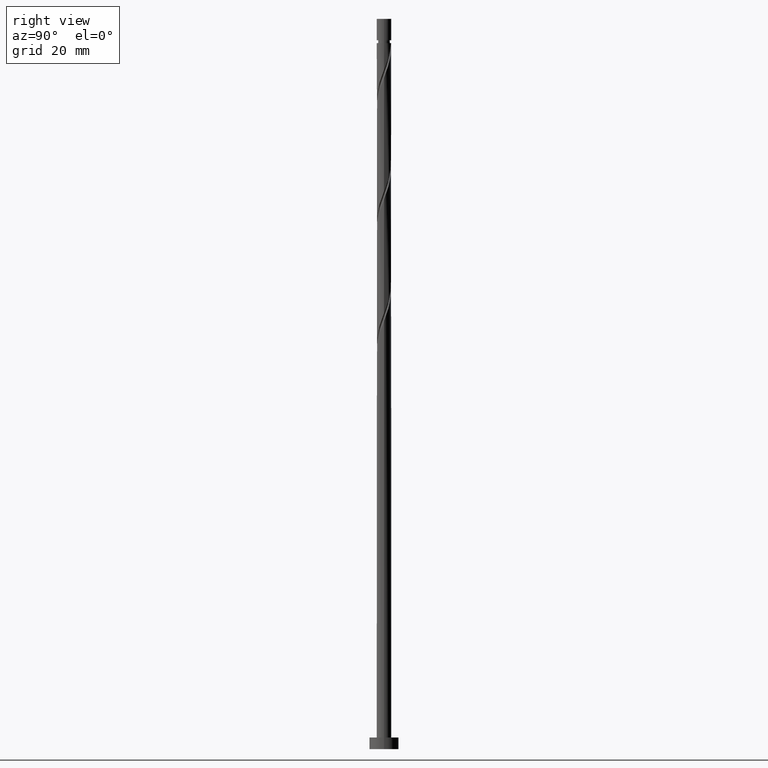
[diagram: clean part render]
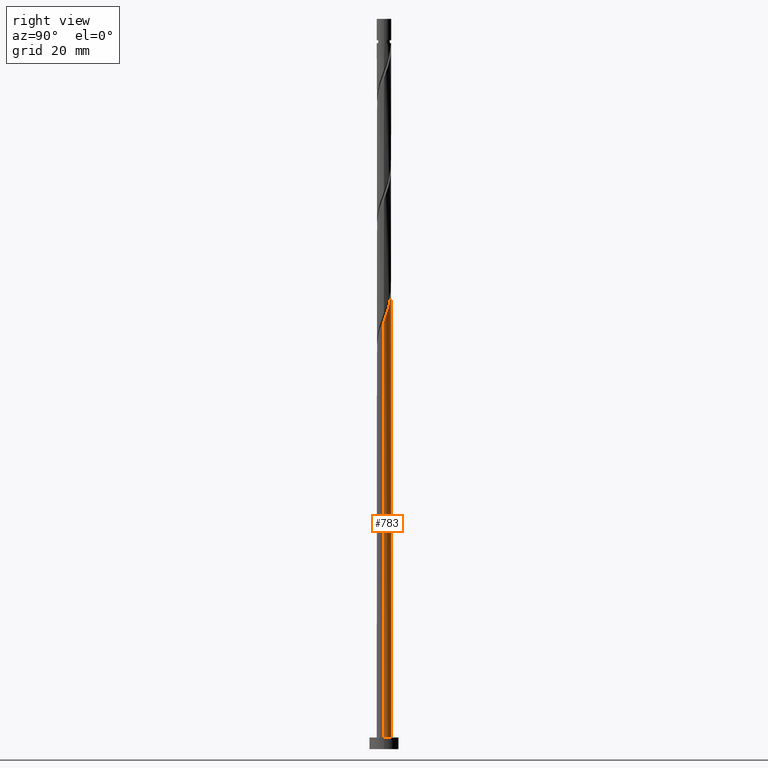
[diagram: same view with one face highlighted and labeled with its STEP entity id]
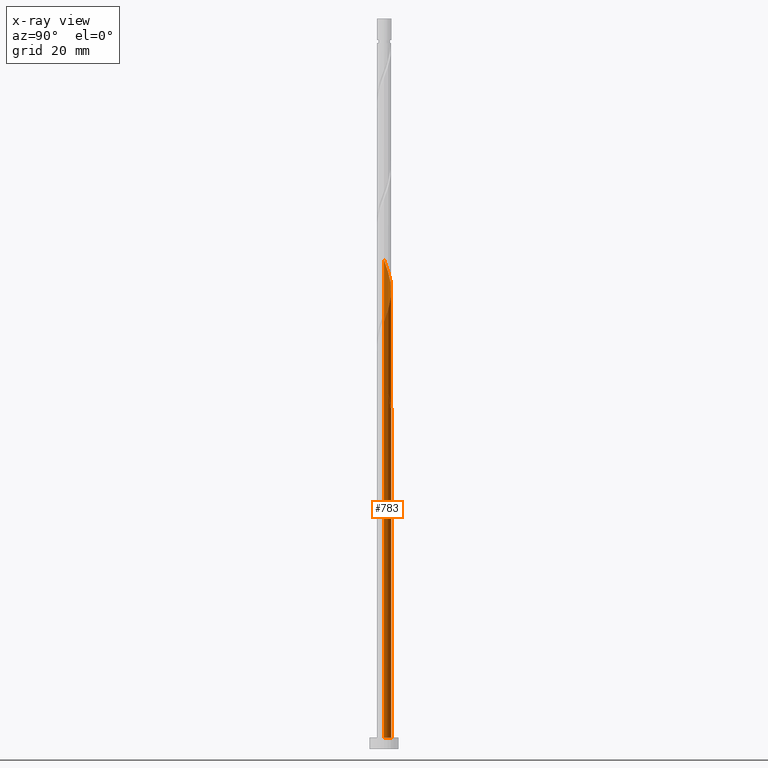
[diagram: x-ray of the same camera — body ghosted, the highlighted face saturated]
A machine part, right view. The second image highlights one B-rep face of the part: STEP entity #783.
The next image is the same camera in x-ray: the body ghosted, the highlighted face saturated — about 0% of this face is hidden behind the body in this view.
In plain terms, the highlighted cylindrical surface (edge-blend (fillet) strip) has radius 1.25 mm, axis along (-0, -0, -1).
Its self-contained STEP definition (entity closure, byte-faithful):
#10 = DIRECTION ( 'NONE',  ( -0.000000000000000000, -0.000000000000000000, -1.000000000000000000 ) ) ;
#18 =( BOUNDED_CURVE ( )  B_SPLINE_CURVE ( 2, ( #1286, #1505, #405, #780, #1259, #181, #656, #417, #534, #73, #1017 ),
 .UNSPECIFIED., .F., .T. ) 
 B_SPLINE_CURVE_WITH_KNOTS ( ( 3, 2, 2, 2, 2, 3 ),
 ( 0.000000000000000000, 0.01249999999999995559, 0.02500000000000002220, 0.03749999999999997780, 0.05000000000000004441, 0.05453220231385529082 ),
 .UNSPECIFIED. ) 
 CURVE ( )  GEOMETRIC_REPRESENTATION_ITEM ( )  RATIONAL_B_SPLINE_CURVE ( ( 0.9090909090909247148, 0.8978984914501405568, 0.9090909090909247148, 0.8978984914501405568, 0.9090909090909247148, 0.8978984914501405568, 0.9090909090909247148, 0.8978984914501405568, 0.9090909090909247148, 0.9050328050005889136, 0.9039174447099467269 ) ) 
 REPRESENTATION_ITEM ( '' )  );
#23 = DIRECTION ( 'NONE',  ( 0.000000000000000000, 0.000000000000000000, 1.000000000000000000 ) ) ;
#40 = CARTESIAN_POINT ( 'NONE',  ( 0.05472591987909831285, 1.264397632089019563, 58.85821959609354082 ) ) ;
#56 = CARTESIAN_POINT ( 'NONE',  ( -0.2487468592766551023, 1.225000000000001643, 79.17071959609350529 ) ) ;
#73 = CARTESIAN_POINT ( 'NONE',  ( -1.250000000000002442, 0.07121717180803986691, 62.69140606541601102 ) ) ;
#78 = CARTESIAN_POINT ( 'NONE',  ( 1.185602367910983057, 0.4427677986742126204, 74.48321959609356213 ) ) ;
#113 = DIRECTION ( 'NONE',  ( -0.000000000000000000, -0.000000000000000000, -1.000000000000000000 ) ) ;
#149 = VERTEX_POINT ( 'NONE', #580 ) ;
#161 = CARTESIAN_POINT ( 'NONE',  ( -0.6989200819604577397, 1.055086260630532458, 60.94155292942686941 ) ) ;
#181 = CARTESIAN_POINT ( 'NONE',  ( -1.055086260630534012, 0.6989200819604589610, 60.94155292942687652 ) ) ;
#186 = CARTESIAN_POINT ( 'NONE',  ( 1.250000000000001998, 1.214441325439654494E-15, 73.29758382128994754 ) ) ;
#197 = ORIENTED_EDGE ( 'NONE', *, *, #1414, .T. ) ;
#200 = CARTESIAN_POINT ( 'NONE',  ( -0.9212773705104884137, 0.8448360826724228279, 81.25405292942686231 ) ) ;
#201 = CARTESIAN_POINT ( 'NONE',  ( -1.250000000000000000, 0.000000000000000000, 125.0000000000000000 ) ) ;
#204 = VECTOR ( 'NONE', #10, 1000.000000000000000 ) ;
#215 = CARTESIAN_POINT ( 'NONE',  ( -0.9907520833843854735, 0.7874684803904422603, 61.98321959609354792 ) ) ;
#254 = EDGE_CURVE ( 'NONE', #149, #497, #1523, .T. ) ;
#265 = CARTESIAN_POINT ( 'NONE',  ( 0.000000000000000000, 0.000000000000000000, 2.000000000000000000 ) ) ;
#270 = FACE_OUTER_BOUND ( 'NONE', #915, .T. ) ;
#281 = VERTEX_POINT ( 'NONE', #550 ) ;
#287 = CYLINDRICAL_SURFACE ( 'NONE', #568, 1.250000000000000000 ) ;
#293 = CARTESIAN_POINT ( 'NONE',  ( -1.055086260630534012, 0.6989200819604589610, 81.77488626276023354 ) ) ;
#305 = CARTESIAN_POINT ( 'NONE',  ( -1.241911239275444778, 0.1419734966862944425, 83.33738626276021932 ) ) ;
#331 = CARTESIAN_POINT ( 'NONE',  ( -1.088177225647683377, 0.6151181395323275236, 62.50405292942688362 ) ) ;
#366 = CARTESIAN_POINT ( 'NONE',  ( -0.5187964976060721600, 1.137255553546199893, 60.42071959609356213 ) ) ;
#374 = VECTOR ( 'NONE', #113, 1000.000000000000000 ) ;
#405 = CARTESIAN_POINT ( 'NONE',  ( -0.6151181395323278567, 1.088177225647684931, 59.37905292942686231 ) ) ;
#409 = CARTESIAN_POINT ( 'NONE',  ( -0.7874684803904431485, 0.9907520833843873609, 80.73321959609353371 ) ) ;
#410 = VERTEX_POINT ( 'NONE', #799 ) ;
#417 = CARTESIAN_POINT ( 'NONE',  ( -1.219424846461869105, 0.3386729132516872465, 61.98321959609355503 ) ) ;
#419 = ORIENTED_EDGE ( 'NONE', *, *, #885, .F. ) ;
#435 = CARTESIAN_POINT ( 'NONE',  ( -1.250000000000000444, 0.1256297269074008183, 63.87621746215596374 ) ) ;
#443 = CARTESIAN_POINT ( 'NONE',  ( -0.8448360826724220507, 0.9212773705104875255, 61.46238626276023354 ) ) ;
#474 = CARTESIAN_POINT ( 'NONE',  ( 0.000000000000000000, 0.000000000000000000, 58.33738626276021932 ) ) ;
#497 = VERTEX_POINT ( 'NONE', #788 ) ;
#507 = EDGE_CURVE ( 'NONE', #1016, #1499, #18, .T. ) ;
#520 = VERTEX_POINT ( 'NONE', #908 ) ;
#532 = CARTESIAN_POINT ( 'NONE',  ( 0.8448360826724229389, 0.9212773705104880806, 76.04571959609354792 ) ) ;
#534 = CARTESIAN_POINT ( 'NONE',  ( -1.241911239275444778, 0.1419734966862944425, 62.50405292942687652 ) ) ;
#540 = CARTESIAN_POINT ( 'NONE',  ( -1.219424846461869105, 0.3386729132516872465, 82.81655292942689073 ) ) ;
#550 = CARTESIAN_POINT ( 'NONE',  ( 1.250000000000000000, 1.530808498934191571E-16, 2.000000000000000000 ) ) ;
#554 = CARTESIAN_POINT ( 'NONE',  ( 0.3386729132516873020, 1.219424846461869105, 77.60821959609357634 ) ) ;
#568 = AXIS2_PLACEMENT_3D ( 'NONE', #1355, #1117, #742 ) ;
#579 = CARTESIAN_POINT ( 'NONE',  ( 1.250000000000000000, 1.530808498934191571E-16, 125.0000000000000000 ) ) ;
#580 = CARTESIAN_POINT ( 'NONE',  ( -1.250000000000002220, -1.386862007446519028E-15, 83.71425048795661894 ) ) ;
#611 = LINE ( 'NONE', #1092, #204 ) ;
#614 = AXIS2_PLACEMENT_3D ( 'NONE', #265, #23, #734 ) ;
#656 = CARTESIAN_POINT ( 'NONE',  ( -1.137255553546201226, 0.5187964976060727151, 61.46238626276019801 ) ) ;
#660 = CARTESIAN_POINT ( 'NONE',  ( -0.05472591987909788264, 1.264397632089020895, 78.64988626276021932 ) ) ;
#675 = CARTESIAN_POINT ( 'NONE',  ( -1.250000000000002220, -1.386862007446519028E-15, 83.71425048795660473 ) ) ;
#734 = DIRECTION ( 'NONE',  ( 1.000000000000000000, 0.000000000000000000, 0.000000000000000000 ) ) ;
#742 = DIRECTION ( 'NONE',  ( -1.000000000000000000, 0.000000000000000000, 0.000000000000000000 ) ) ;
#748 = EDGE_CURVE ( 'NONE', #497, #1257, #984, .T. ) ;
#757 = ORIENTED_EDGE ( 'NONE', *, *, #748, .F. ) ;
#768 = CARTESIAN_POINT ( 'NONE',  ( -0.2487468592766551301, 1.225000000000001643, 58.33738626276020511 ) ) ;
#780 = CARTESIAN_POINT ( 'NONE',  ( -0.7874684803904431485, 0.9907520833843873609, 59.89988626276019801 ) ) ;
#783 = ADVANCED_FACE ( 'NONE', ( #270 ), #287, .T. ) ;
#788 = CARTESIAN_POINT ( 'NONE',  ( -1.250000000000000222, -5.277572179688405354E-15, 64.21052203756380550 ) ) ;
#798 = CARTESIAN_POINT ( 'NONE',  ( 0.5187964976060730482, 1.137255553546201226, 77.08738626276020511 ) ) ;
#799 = CARTESIAN_POINT ( 'NONE',  ( 1.250000000000001998, 1.214441325439654494E-15, 73.29758382128994754 ) ) ;
#812 = CARTESIAN_POINT ( 'NONE',  ( -1.250000000000000222, -5.277572179688405354E-15, 64.21052203756380550 ) ) ;
#836 = LINE ( 'NONE', #579, #374 ) ;
#849 = CARTESIAN_POINT ( 'NONE',  ( 0.2487468592766556297, 1.225000000000000311, 58.33738626276021222 ) ) ;
#853 = DIRECTION ( 'NONE',  ( 0.000000000000000000, -0.000000000000000000, -1.000000000000000000 ) ) ;
#874 = AXIS2_PLACEMENT_3D ( 'NONE', #474, #853, #1339 ) ;
#885 = EDGE_CURVE ( 'NONE', #1499, #520, #611, .T. ) ;
#887 = CARTESIAN_POINT ( 'NONE',  ( 1.088177225647684931, 0.6151181395323277457, 75.00405292942689073 ) ) ;
#897 = CIRCLE ( 'NONE', #614, 1.250000000000000000 ) ;
#901 = CARTESIAN_POINT ( 'NONE',  ( 1.225000000000001643, 0.2487468592766552411, 73.96238626276021932 ) ) ;
#908 = CARTESIAN_POINT ( 'NONE',  ( -1.250000000000000000, 0.000000000000000000, 2.000000000000000000 ) ) ;
#915 = EDGE_LOOP ( 'NONE', ( #1347, #1032, #1031, #419, #1328, #197, #757, #1359 ) ) ;
#921 = CIRCLE ( 'NONE', #874, 1.250000000000000000 ) ;
#928 = EDGE_CURVE ( 'NONE', #410, #149, #1273, .T. ) ;
#929 = CARTESIAN_POINT ( 'NONE',  ( -1.225000000000000311, 0.2487468592766554076, 63.54571959609354792 ) ) ;
#984 =( BOUNDED_CURVE ( )  B_SPLINE_CURVE ( 2, ( #812, #435, #929, #1419, #331, #215, #443, #161, #366, #1109, #1488, #40, #849 ),
 .UNSPECIFIED., .F., .T. ) 
 B_SPLINE_CURVE_WITH_KNOTS ( ( 3, 2, 2, 2, 2, 2, 3 ),
 ( 0.9295322023138551382, 0.9375000000000000000, 0.9499999999999999556, 0.9625000000000000222, 0.9749999999999999778, 0.9875000000000000444, 1.000000000000000000 ),
 .UNSPECIFIED. ) 
 CURVE ( )  GEOMETRIC_REPRESENTATION_ITEM ( )  RATIONAL_B_SPLINE_CURVE ( ( 0.9039174447099412868, 0.9019565955404704738, 0.9090909090909189416, 0.8978984914501352277, 0.9090909090909189416, 0.8978984914501352277, 0.9090909090909189416, 0.8978984914501352277, 0.9090909090909189416, 0.8978984914501352277, 0.9090909090909189416, 0.8978984914501352277, 0.9090909090909189416 ) ) 
 REPRESENTATION_ITEM ( '' )  );
#1015 = CARTESIAN_POINT ( 'NONE',  ( -0.6151181395323278567, 1.088177225647684931, 80.21238626276017669 ) ) ;
#1016 = VERTEX_POINT ( 'NONE', #768 ) ;
#1017 = CARTESIAN_POINT ( 'NONE',  ( -1.250000000000001998, -1.187453740429884342E-14, 62.88091715462329745 ) ) ;
#1031 = ORIENTED_EDGE ( 'NONE', *, *, #1425, .T. ) ;
#1032 = ORIENTED_EDGE ( 'NONE', *, *, #1140, .T. ) ;
#1033 = DIRECTION ( 'NONE',  ( -0.000000000000000000, -0.000000000000000000, -1.000000000000000000 ) ) ;
#1038 = CARTESIAN_POINT ( 'NONE',  ( -1.137255553546201226, 0.5187964976060727151, 82.29571959609351950 ) ) ;
#1092 = CARTESIAN_POINT ( 'NONE',  ( -1.250000000000000000, 0.000000000000000000, 125.0000000000000000 ) ) ;
#1109 = CARTESIAN_POINT ( 'NONE',  ( -0.3386729132516864138, 1.219424846461866663, 59.89988626276020511 ) ) ;
#1117 = DIRECTION ( 'NONE',  ( -0.000000000000000000, -0.000000000000000000, -1.000000000000000000 ) ) ;
#1140 = EDGE_CURVE ( 'NONE', #410, #281, #836, .T. ) ;
#1150 = CARTESIAN_POINT ( 'NONE',  ( -1.250000000000001998, -1.187453740429884342E-14, 62.88091715462329745 ) ) ;
#1166 = CARTESIAN_POINT ( 'NONE',  ( 0.2487468592766556297, 1.225000000000000311, 58.33738626276020511 ) ) ;
#1245 = CARTESIAN_POINT ( 'NONE',  ( -0.4427677986742128424, 1.185602367910983057, 79.69155292942689073 ) ) ;
#1257 = VERTEX_POINT ( 'NONE', #1166 ) ;
#1259 = CARTESIAN_POINT ( 'NONE',  ( -0.9212773705104884137, 0.8448360826724228279, 60.42071959609352660 ) ) ;
#1273 =( BOUNDED_CURVE ( )  B_SPLINE_CURVE ( 2, ( #186, #1373, #901, #78, #887, #1396, #532, #1277, #798, #554, #1504, #660, #56, #1245, #1015, #409, #200, #293, #1038, #540, #305, #1389, #675 ),
 .UNSPECIFIED., .F., .T. ) 
 B_SPLINE_CURVE_WITH_KNOTS ( ( 3, 2, 2, 2, 2, 2, 2, 2, 2, 2, 2, 3 ),
 ( 0.1795322023138555267, 0.1875000000000000000, 0.1999999999999999556, 0.2125000000000000222, 0.2249999999999999778, 0.2375000000000000444, 0.2500000000000000000, 0.2624999999999999556, 0.2750000000000000222, 0.2874999999999999778, 0.3000000000000000444, 0.3045322023138552492 ),
 .UNSPECIFIED. ) 
 CURVE ( )  GEOMETRIC_REPRESENTATION_ITEM ( )  RATIONAL_B_SPLINE_CURVE ( ( 0.9039174447099467269, 0.9019565955404764690, 0.9090909090909247148, 0.8978984914501405568, 0.9090909090909247148, 0.8978984914501405568, 0.9090909090909247148, 0.8978984914501405568, 0.9090909090909247148, 0.8978984914501405568, 0.9090909090909247148, 0.8978984914501405568, 0.9090909090909247148, 0.8978984914501405568, 0.9090909090909247148, 0.8978984914501405568, 0.9090909090909247148, 0.8978984914501405568, 0.9090909090909247148, 0.8978984914501405568, 0.9090909090909247148, 0.9050328050005889136, 0.9039174447099467269 ) ) 
 REPRESENTATION_ITEM ( '' )  );
#1277 = CARTESIAN_POINT ( 'NONE',  ( 0.6989200819604590720, 1.055086260630533568, 76.56655292942687652 ) ) ;
#1286 = CARTESIAN_POINT ( 'NONE',  ( -0.2487468592766551023, 1.225000000000001643, 58.33738626276020511 ) ) ;
#1328 = ORIENTED_EDGE ( 'NONE', *, *, #507, .F. ) ;
#1339 = DIRECTION ( 'NONE',  ( -1.000000000000000000, 0.000000000000000000, 0.000000000000000000 ) ) ;
#1347 = ORIENTED_EDGE ( 'NONE', *, *, #928, .F. ) ;
#1355 = CARTESIAN_POINT ( 'NONE',  ( 0.000000000000000000, 0.000000000000000000, 125.0000000000000000 ) ) ;
#1359 = ORIENTED_EDGE ( 'NONE', *, *, #254, .F. ) ;
#1373 = CARTESIAN_POINT ( 'NONE',  ( 1.250000000000000444, 0.1256297269074065359, 73.63188839669777508 ) ) ;
#1389 = CARTESIAN_POINT ( 'NONE',  ( -1.250000000000002442, 0.07121717180804050529, 83.52473939874934672 ) ) ;
#1396 = CARTESIAN_POINT ( 'NONE',  ( 0.9907520833843875829, 0.7874684803904430375, 75.52488626276021932 ) ) ;
#1414 = EDGE_CURVE ( 'NONE', #1016, #1257, #921, .T. ) ;
#1419 = CARTESIAN_POINT ( 'NONE',  ( -1.185602367910980837, 0.4427677986742123983, 63.02488626276019090 ) ) ;
#1425 = EDGE_CURVE ( 'NONE', #281, #520, #897, .T. ) ;
#1488 = CARTESIAN_POINT ( 'NONE',  ( -0.1419734966862940262, 1.241911239275443446, 59.37905292942687652 ) ) ;
#1499 = VERTEX_POINT ( 'NONE', #1150 ) ;
#1504 = CARTESIAN_POINT ( 'NONE',  ( 0.1419734966862947201, 1.241911239275444778, 78.12905292942687652 ) ) ;
#1505 = CARTESIAN_POINT ( 'NONE',  ( -0.4427677986742128424, 1.185602367910983057, 58.85821959609354792 ) ) ;
#1512 = VECTOR ( 'NONE', #1033, 1000.000000000000000 ) ;
#1523 = LINE ( 'NONE', #201, #1512 ) ;